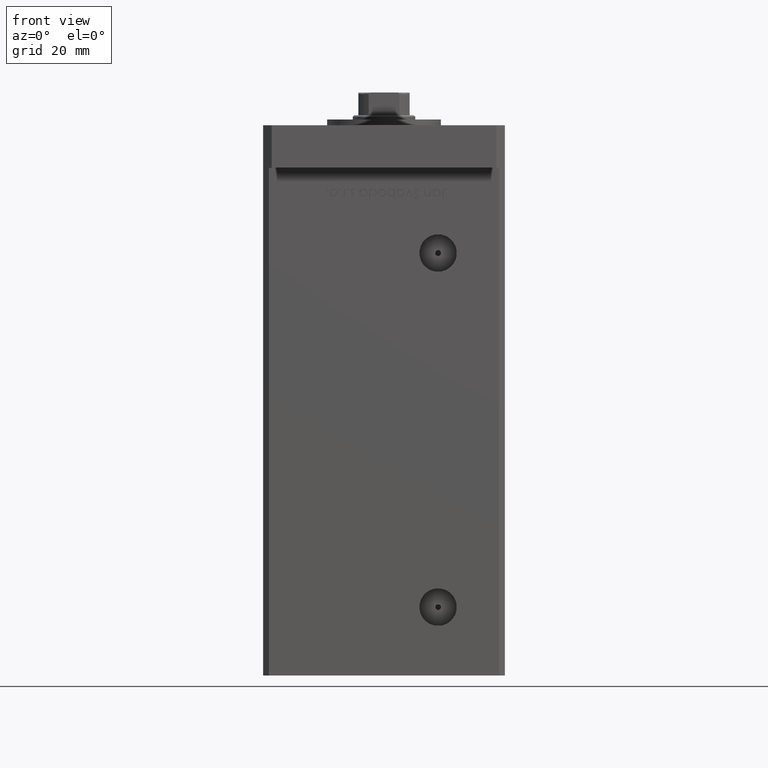
[diagram: clean part render]
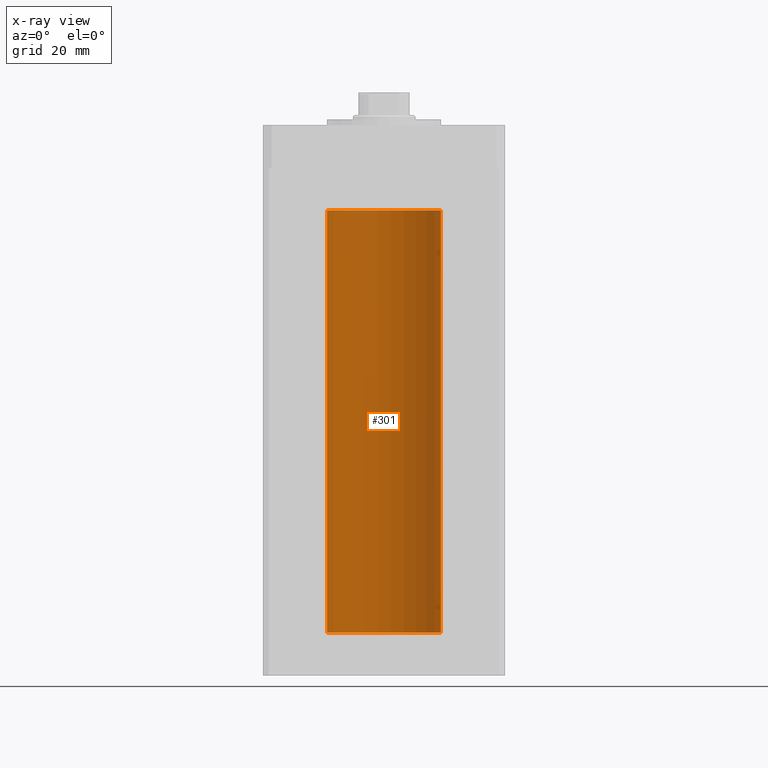
[diagram: x-ray — body ghosted, one internal face saturated and labeled with its STEP entity id]
A machine part, front view, then the same camera in x-ray: the body is ghosted and one INTERNAL B-rep face — a face not visible from any outside direction — is saturated and labeled: STEP entity #301.
In plain terms, the highlighted cylindrical surface (partial cylindrical patch) has radius 20 mm, axis along (-0, -0, -1).
Its self-contained STEP definition (entity closure, byte-faithful):
#301 = ADVANCED_FACE ( 'NONE', ( #8930 ), #25500, .F. ) ;
#3267 = CARTESIAN_POINT ( 'NONE',  ( 20.00000000000000000, 2.449293598294706513E-15, 148.5000000000000000 ) ) ;
#4864 = CARTESIAN_POINT ( 'NONE',  ( 0.000000000000000000, 0.000000000000000000, 148.5000000000000000 ) ) ;
#5763 = VERTEX_POINT ( 'NONE', #14193 ) ;
#6632 = ORIENTED_EDGE ( 'NONE', *, *, #33247, .T. ) ;
#7592 = DIRECTION ( 'NONE',  ( -0.000000000000000000, -0.000000000000000000, -1.000000000000000000 ) ) ;
#8579 = EDGE_LOOP ( 'NONE', ( #10299, #6632, #47142, #37313 ) ) ;
#8930 = FACE_OUTER_BOUND ( 'NONE', #8579, .T. ) ;
#10041 = CARTESIAN_POINT ( 'NONE',  ( 20.00000000000000000, 2.449293598294706513E-15, 148.5000000000000000 ) ) ;
#10299 = ORIENTED_EDGE ( 'NONE', *, *, #19856, .F. ) ;
#14193 = CARTESIAN_POINT ( 'NONE',  ( -20.00000000000000000, 0.000000000000000000, 148.5000000000000000 ) ) ;
#14674 = DIRECTION ( 'NONE',  ( 1.000000000000000000, 0.000000000000000000, 0.000000000000000000 ) ) ;
#15278 = CARTESIAN_POINT ( 'NONE',  ( 0.000000000000000000, 0.000000000000000000, 148.5000000000000000 ) ) ;
#17617 = DIRECTION ( 'NONE',  ( -0.000000000000000000, -0.000000000000000000, -1.000000000000000000 ) ) ;
#19856 = EDGE_CURVE ( 'NONE', #44803, #34716, #43961, .T. ) ;
#20087 = AXIS2_PLACEMENT_3D ( 'NONE', #15278, #24227, #40749 ) ;
#21041 = EDGE_CURVE ( 'NONE', #34716, #50625, #38064, .T. ) ;
#23631 = CARTESIAN_POINT ( 'NONE',  ( 0.000000000000000000, 0.000000000000000000, 0.000000000000000000 ) ) ;
#24227 = DIRECTION ( 'NONE',  ( -0.000000000000000000, 0.000000000000000000, 1.000000000000000000 ) ) ;
#25500 = CYLINDRICAL_SURFACE ( 'NONE', #43022, 20.00000000000000000 ) ;
#25812 = CARTESIAN_POINT ( 'NONE',  ( -20.00000000000000000, 0.000000000000000000, 148.5000000000000000 ) ) ;
#26321 = VECTOR ( 'NONE', #47470, 1000.000000000000000 ) ;
#27662 = AXIS2_PLACEMENT_3D ( 'NONE', #23631, #31755, #14674 ) ;
#30205 = VECTOR ( 'NONE', #7592, 1000.000000000000000 ) ;
#31755 = DIRECTION ( 'NONE',  ( -0.000000000000000000, 0.000000000000000000, 1.000000000000000000 ) ) ;
#33247 = EDGE_CURVE ( 'NONE', #44803, #5763, #37394, .T. ) ;
#33716 = CARTESIAN_POINT ( 'NONE',  ( 20.00000000000000000, 2.449293598294706513E-15, 0.000000000000000000 ) ) ;
#34716 = VERTEX_POINT ( 'NONE', #33716 ) ;
#37313 = ORIENTED_EDGE ( 'NONE', *, *, #21041, .F. ) ;
#37394 = CIRCLE ( 'NONE', #20087, 20.00000000000000000 ) ;
#38064 = CIRCLE ( 'NONE', #27662, 20.00000000000000000 ) ;
#40749 = DIRECTION ( 'NONE',  ( 1.000000000000000000, 0.000000000000000000, 0.000000000000000000 ) ) ;
#42067 = EDGE_CURVE ( 'NONE', #5763, #50625, #43126, .T. ) ;
#43022 = AXIS2_PLACEMENT_3D ( 'NONE', #4864, #17617, #45282 ) ;
#43126 = LINE ( 'NONE', #25812, #26321 ) ;
#43961 = LINE ( 'NONE', #3267, #30205 ) ;
#44803 = VERTEX_POINT ( 'NONE', #10041 ) ;
#45282 = DIRECTION ( 'NONE',  ( -1.000000000000000000, 0.000000000000000000, 0.000000000000000000 ) ) ;
#47142 = ORIENTED_EDGE ( 'NONE', *, *, #42067, .T. ) ;
#47470 = DIRECTION ( 'NONE',  ( -0.000000000000000000, -0.000000000000000000, -1.000000000000000000 ) ) ;
#50625 = VERTEX_POINT ( 'NONE', #52788 ) ;
#52788 = CARTESIAN_POINT ( 'NONE',  ( -20.00000000000000000, 0.000000000000000000, 0.000000000000000000 ) ) ;